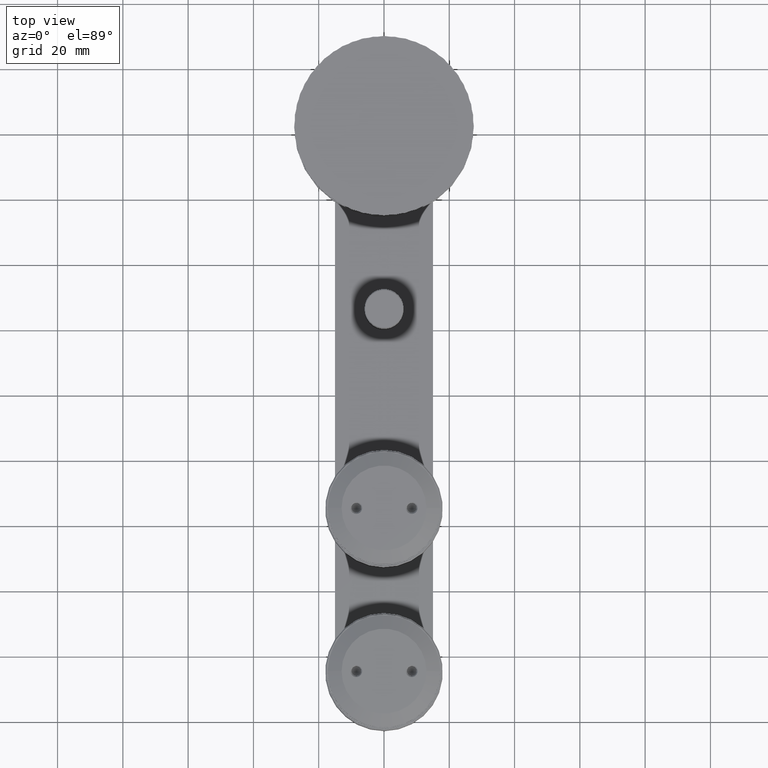
[diagram: clean part render]
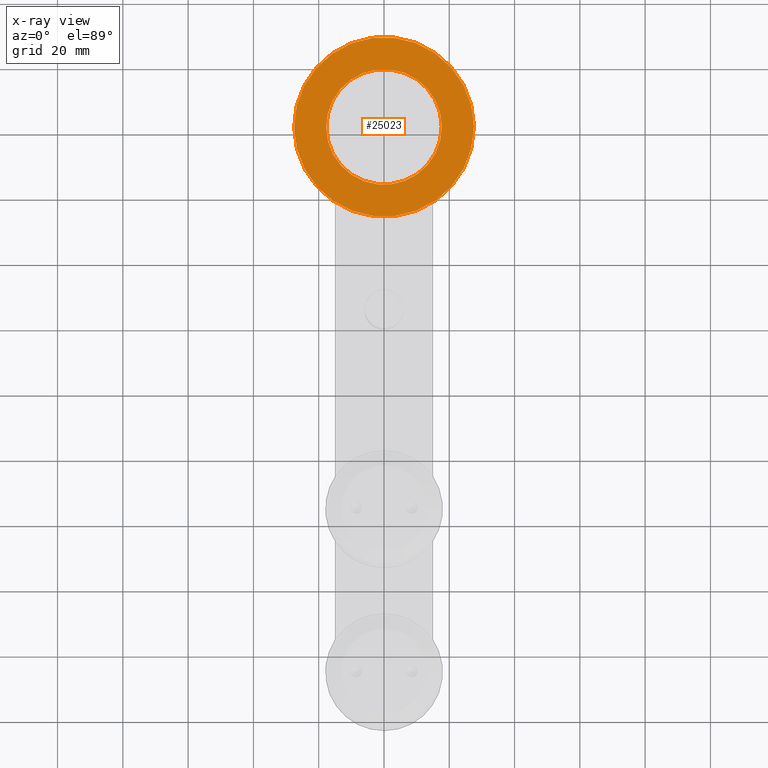
[diagram: x-ray — body ghosted, one internal face saturated and labeled with its STEP entity id]
A machine part, top view, then the same camera in x-ray: the body is ghosted and one INTERNAL B-rep face — a face not visible from any outside direction — is saturated and labeled: STEP entity #25023.
In plain terms, the highlighted planar face has unit normal (0, 0, 1).
Its self-contained STEP definition (entity closure, byte-faithful):
#867 = ORIENTED_EDGE ( 'NONE', *, *, #27084, .F. ) ;
#1669 = VERTEX_POINT ( 'NONE', #31806 ) ;
#2007 = CARTESIAN_POINT ( 'NONE',  ( -27.50000000000007500, 0.0000000000000000000, 2.000000000000000000 ) ) ;
#2138 = DIRECTION ( 'NONE',  ( 0.0000000000000000000, 0.0000000000000000000, -1.000000000000000000 ) ) ;
#3457 = CIRCLE ( 'NONE', #26397, 17.70000000000005300 ) ;
#4111 = DIRECTION ( 'NONE',  ( -1.000000000000000000, 0.0000000000000000000, 0.0000000000000000000 ) ) ;
#5179 = VERTEX_POINT ( 'NONE', #35777 ) ;
#6891 = FACE_OUTER_BOUND ( 'NONE', #11946, .T. ) ;
#7133 = CARTESIAN_POINT ( 'NONE',  ( 0.0000000000000000000, 0.0000000000000000000, 2.000000000000000000 ) ) ;
#9336 = CIRCLE ( 'NONE', #10884, 27.50000000000007500 ) ;
#10884 = AXIS2_PLACEMENT_3D ( 'NONE', #28840, #25493, #4111 ) ;
#11562 = ORIENTED_EDGE ( 'NONE', *, *, #14116, .T. ) ;
#11946 = EDGE_LOOP ( 'NONE', ( #32543, #867 ) ) ;
#12854 = CARTESIAN_POINT ( 'NONE',  ( -2.168404344971008900E-016, 17.69999999999999200, 2.000000000000000000 ) ) ;
#12868 = DIRECTION ( 'NONE',  ( -1.000000000000000000, 0.0000000000000000000, 0.0000000000000000000 ) ) ;
#12889 = FACE_BOUND ( 'NONE', #20095, .T. ) ;
#14116 = EDGE_CURVE ( 'NONE', #39511, #1669, #25265, .T. ) ;
#16774 = VERTEX_POINT ( 'NONE', #2007 ) ;
#20095 = EDGE_LOOP ( 'NONE', ( #20754, #11562 ) ) ;
#20754 = ORIENTED_EDGE ( 'NONE', *, *, #38909, .T. ) ;
#20888 = DIRECTION ( 'NONE',  ( -1.000000000000000000, 0.0000000000000000000, 0.0000000000000000000 ) ) ;
#23386 = DIRECTION ( 'NONE',  ( 0.0000000000000000000, 0.0000000000000000000, 1.000000000000000000 ) ) ;
#23534 = PLANE ( 'NONE',  #33970 ) ;
#24595 = DIRECTION ( 'NONE',  ( 0.0000000000000000000, 0.0000000000000000000, -1.000000000000000000 ) ) ;
#24840 = DIRECTION ( 'NONE',  ( 0.0000000000000000000, 0.0000000000000000000, -1.000000000000000000 ) ) ;
#25023 = ADVANCED_FACE ( 'NONE', ( #12889, #6891 ), #23534, .T. ) ;
#25265 = CIRCLE ( 'NONE', #29031, 17.70000000000005300 ) ;
#25493 = DIRECTION ( 'NONE',  ( 0.0000000000000000000, 0.0000000000000000000, -1.000000000000000000 ) ) ;
#26397 = AXIS2_PLACEMENT_3D ( 'NONE', #37488, #2138, #12868 ) ;
#27084 = EDGE_CURVE ( 'NONE', #5179, #16774, #30090, .T. ) ;
#27149 = EDGE_CURVE ( 'NONE', #16774, #5179, #9336, .T. ) ;
#28840 = CARTESIAN_POINT ( 'NONE',  ( 0.0000000000000000000, 0.0000000000000000000, 2.000000000000000000 ) ) ;
#29031 = AXIS2_PLACEMENT_3D ( 'NONE', #7133, #24840, #20888 ) ;
#29854 = AXIS2_PLACEMENT_3D ( 'NONE', #38235, #24595, #38833 ) ;
#30090 = CIRCLE ( 'NONE', #29854, 27.50000000000007500 ) ;
#30404 = DIRECTION ( 'NONE',  ( 1.000000000000000000, 0.0000000000000000000, 0.0000000000000000000 ) ) ;
#31806 = CARTESIAN_POINT ( 'NONE',  ( -17.70000000000004900, 0.0000000000000000000, 2.000000000000000000 ) ) ;
#32543 = ORIENTED_EDGE ( 'NONE', *, *, #27149, .F. ) ;
#33970 = AXIS2_PLACEMENT_3D ( 'NONE', #12854, #23386, #30404 ) ;
#35777 = CARTESIAN_POINT ( 'NONE',  ( 27.50000000000000000, 3.367778697655221300E-015, 2.000000000000000000 ) ) ;
#37488 = CARTESIAN_POINT ( 'NONE',  ( 0.0000000000000000000, 0.0000000000000000000, 2.000000000000000000 ) ) ;
#38235 = CARTESIAN_POINT ( 'NONE',  ( 0.0000000000000000000, 0.0000000000000000000, 2.000000000000000000 ) ) ;
#38833 = DIRECTION ( 'NONE',  ( -1.000000000000000000, 0.0000000000000000000, 0.0000000000000000000 ) ) ;
#38909 = EDGE_CURVE ( 'NONE', #1669, #39511, #3457, .T. ) ;
#39511 = VERTEX_POINT ( 'NONE', #43218 ) ;
#43218 = CARTESIAN_POINT ( 'NONE',  ( 17.70000000000004900, 2.167624834490821300E-015, 1.999999999999999100 ) ) ;